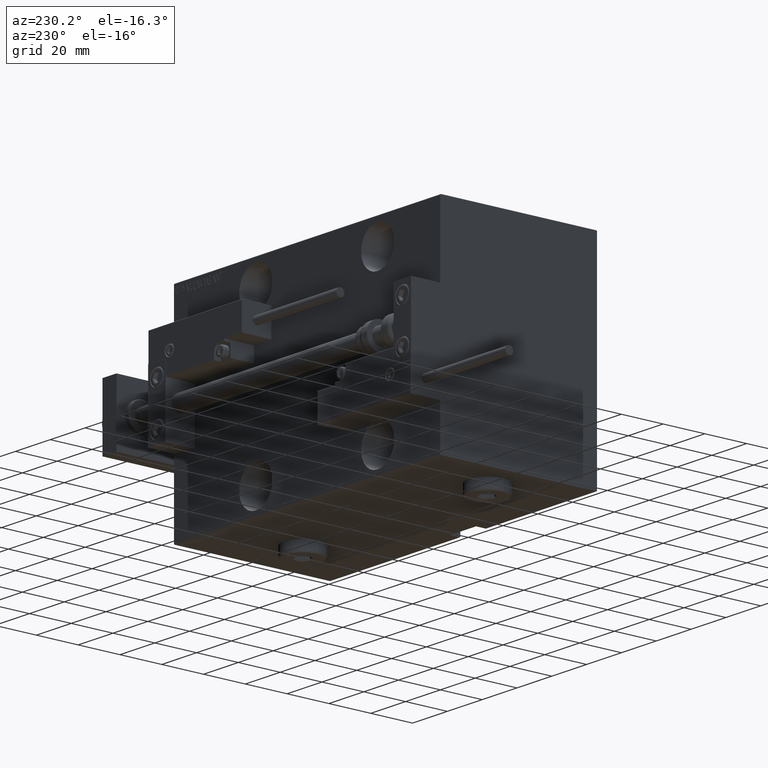
[diagram: clean part render]
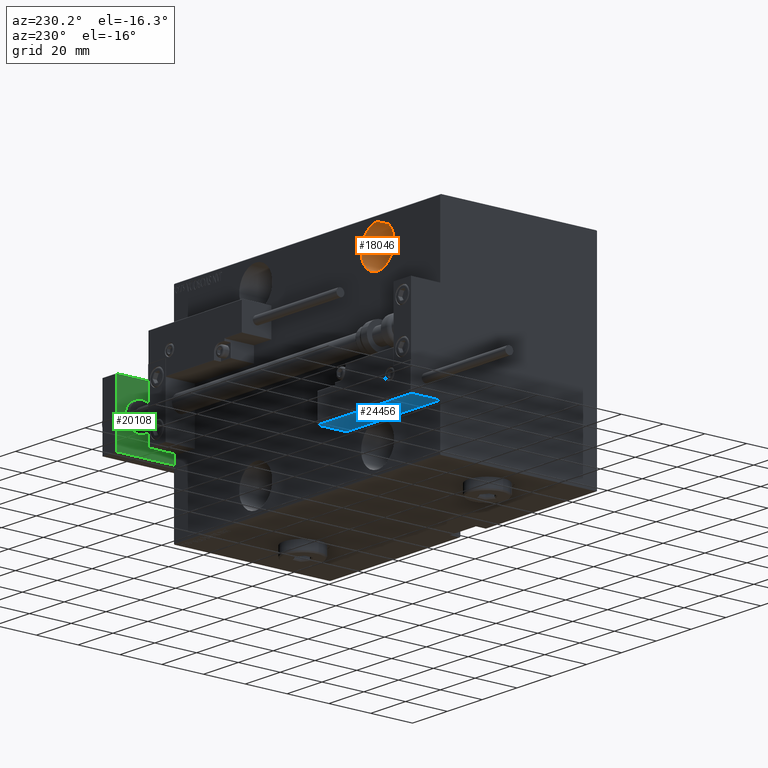
[diagram: same view with three faces highlighted in distinct colors, each labeled with its STEP entity id]
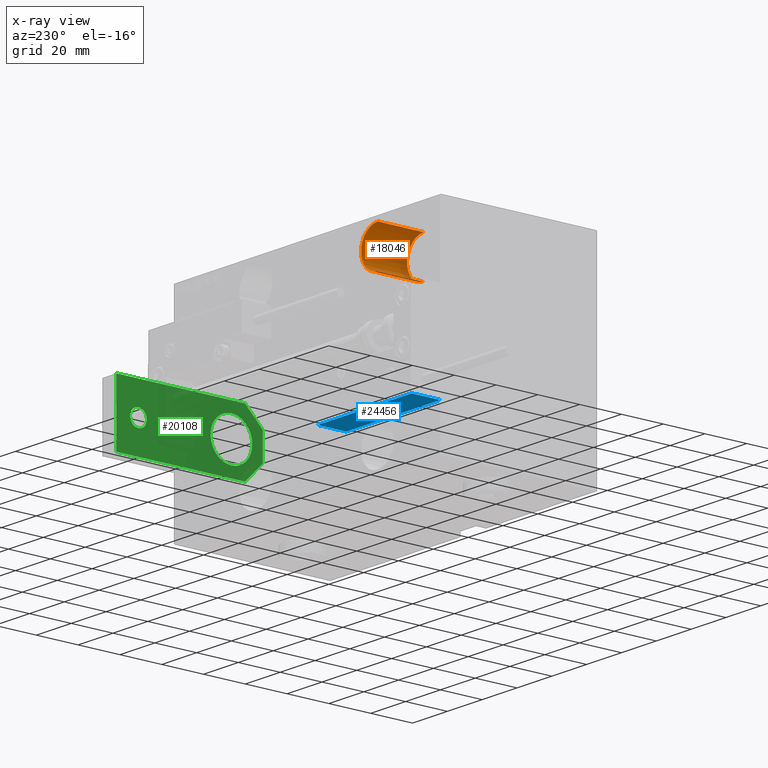
[diagram: x-ray of the same camera — body ghosted, the three highlighted faces saturated]
A machine part, auxiliary view with three faces highlighted in distinct colors.
The next image is the same camera in x-ray (body ghosted, the three faces saturated) — at least one of them is partly hidden behind the body in this view.
Their STEP definitions:

[orange] entity #18046 — the highlighted cylindrical surface (edge-blend (fillet) strip) has radius 9.5 mm, axis along (0, 1, -0).
#703 = EDGE_CURVE ( 'NONE', #44399, #51007, #41906, .T. ) ;
#1337 = DIRECTION ( 'NONE',  ( -0.000000000000000000, -1.000000000000000000, -0.000000000000000000 ) ) ;
#4567 = DIRECTION ( 'NONE',  ( 0.000000000000000000, 0.000000000000000000, -1.000000000000000000 ) ) ;
#6134 = ORIENTED_EDGE ( 'NONE', *, *, #703, .T. ) ;
#6302 = DIRECTION ( 'NONE',  ( 0.000000000000000000, 0.000000000000000000, -1.000000000000000000 ) ) ;
#6989 = CARTESIAN_POINT ( 'NONE',  ( 117.0000000000000142, -15.50000000000000000, 28.49999999999997513 ) ) ;
#7528 = VECTOR ( 'NONE', #24586, 1000.000000000000000 ) ;
#9220 = CIRCLE ( 'NONE', #29903, 9.500000000000008882 ) ;
#11853 = CARTESIAN_POINT ( 'NONE',  ( 117.0000000000000142, -15.50000000000000000, 37.99999999999998579 ) ) ;
#12366 = CYLINDRICAL_SURFACE ( 'NONE', #34067, 9.500000000000008882 ) ;
#14119 = CARTESIAN_POINT ( 'NONE',  ( 117.0000000000000142, -15.50000000000000000, 47.49999999999999289 ) ) ;
#17984 = EDGE_CURVE ( 'NONE', #40352, #32303, #9220, .T. ) ;
#18046 = ADVANCED_FACE ( 'NONE', ( #32335 ), #12366, .F. ) ;
#20144 = DIRECTION ( 'NONE',  ( 0.000000000000000000, -1.000000000000000000, 0.000000000000000000 ) ) ;
#21302 = CARTESIAN_POINT ( 'NONE',  ( 117.0000000000000142, -15.50000000000000000, 28.49999999999997513 ) ) ;
#23742 = CARTESIAN_POINT ( 'NONE',  ( 117.0000000000000142, -37.50000000000000000, 28.49999999999997513 ) ) ;
#24586 = DIRECTION ( 'NONE',  ( -0.000000000000000000, -1.000000000000000000, -0.000000000000000000 ) ) ;
#25084 = CARTESIAN_POINT ( 'NONE',  ( 117.0000000000000142, -15.50000000000000000, 47.49999999999999289 ) ) ;
#27135 = ORIENTED_EDGE ( 'NONE', *, *, #17984, .F. ) ;
#27275 = EDGE_LOOP ( 'NONE', ( #27135, #42801, #6134, #29849 ) ) ;
#27659 = DIRECTION ( 'NONE',  ( -0.000000000000000000, -1.000000000000000000, -0.000000000000000000 ) ) ;
#29849 = ORIENTED_EDGE ( 'NONE', *, *, #35231, .F. ) ;
#29903 = AXIS2_PLACEMENT_3D ( 'NONE', #11853, #20144, #4567 ) ;
#32303 = VERTEX_POINT ( 'NONE', #6989 ) ;
#32335 = FACE_OUTER_BOUND ( 'NONE', #27275, .T. ) ;
#32737 = LINE ( 'NONE', #21302, #37910 ) ;
#33295 = DIRECTION ( 'NONE',  ( 0.000000000000000000, -1.000000000000000000, 0.000000000000000000 ) ) ;
#34067 = AXIS2_PLACEMENT_3D ( 'NONE', #48215, #27659, #43538 ) ;
#35231 = EDGE_CURVE ( 'NONE', #32303, #51007, #32737, .T. ) ;
#36103 = AXIS2_PLACEMENT_3D ( 'NONE', #49426, #33295, #6302 ) ;
#37280 = LINE ( 'NONE', #25084, #7528 ) ;
#37910 = VECTOR ( 'NONE', #1337, 1000.000000000000000 ) ;
#38681 = CARTESIAN_POINT ( 'NONE',  ( 117.0000000000000142, -37.50000000000000000, 47.49999999999999289 ) ) ;
#40352 = VERTEX_POINT ( 'NONE', #14119 ) ;
#41906 = CIRCLE ( 'NONE', #36103, 9.500000000000008882 ) ;
#42801 = ORIENTED_EDGE ( 'NONE', *, *, #46486, .T. ) ;
#43538 = DIRECTION ( 'NONE',  ( 0.000000000000000000, 0.000000000000000000, -1.000000000000000000 ) ) ;
#44399 = VERTEX_POINT ( 'NONE', #38681 ) ;
#46486 = EDGE_CURVE ( 'NONE', #40352, #44399, #37280, .T. ) ;
#48215 = CARTESIAN_POINT ( 'NONE',  ( 117.0000000000000142, -15.50000000000000000, 37.99999999999998579 ) ) ;
#49426 = CARTESIAN_POINT ( 'NONE',  ( 117.0000000000000142, -37.50000000000000000, 37.99999999999998579 ) ) ;
#51007 = VERTEX_POINT ( 'NONE', #23742 ) ;

[blue] entity #24456 — the highlighted planar face has unit normal (-0, -0, 1).
#1993 = CARTESIAN_POINT ( 'NONE',  ( -26.99999999999993605, 20.00000000000002132, 0.000000000000000000 ) ) ;
#2874 = DIRECTION ( 'NONE',  ( -6.424901762877063495E-17, -1.000000000000000000, 0.000000000000000000 ) ) ;
#3693 = LINE ( 'NONE', #26794, #49859 ) ;
#5208 = EDGE_CURVE ( 'NONE', #27869, #35952, #18635, .T. ) ;
#10988 = VERTEX_POINT ( 'NONE', #1993 ) ;
#11690 = CARTESIAN_POINT ( 'NONE',  ( 27.00000000000006395, 20.00000000000001776, 14.00000000000000000 ) ) ;
#12046 = ORIENTED_EDGE ( 'NONE', *, *, #5208, .T. ) ;
#13788 = EDGE_CURVE ( 'NONE', #35952, #17955, #3693, .T. ) ;
#15648 = DIRECTION ( 'NONE',  ( -0.000000000000000000, -0.000000000000000000, -1.000000000000000000 ) ) ;
#16798 = CARTESIAN_POINT ( 'NONE',  ( 27.00000000000006395, 20.00000000000001776, 13.70000000000000107 ) ) ;
#17461 = LINE ( 'NONE', #48406, #48952 ) ;
#17955 = VERTEX_POINT ( 'NONE', #35721 ) ;
#18635 = LINE ( 'NONE', #47210, #43672 ) ;
#19173 = DIRECTION ( 'NONE',  ( -1.000000000000000000, 6.424901762877062263E-17, 0.000000000000000000 ) ) ;
#21197 = EDGE_CURVE ( 'NONE', #17955, #10988, #35531, .T. ) ;
#22601 = PLANE ( 'NONE',  #24369 ) ;
#23302 = DIRECTION ( 'NONE',  ( 1.000000000000000000, -6.424901762877063495E-17, -0.000000000000000000 ) ) ;
#24369 = AXIS2_PLACEMENT_3D ( 'NONE', #11690, #2874, #35049 ) ;
#24456 = ADVANCED_FACE ( 'NONE', ( #46253 ), #22601, .F. ) ;
#25064 = VECTOR ( 'NONE', #19173, 1000.000000000000000 ) ;
#26794 = CARTESIAN_POINT ( 'NONE',  ( 27.00000000000006395, 20.00000000000001776, 14.00000000000000000 ) ) ;
#27726 = CARTESIAN_POINT ( 'NONE',  ( 27.00000000000006395, 20.00000000000001776, 0.000000000000000000 ) ) ;
#27869 = VERTEX_POINT ( 'NONE', #36594 ) ;
#32526 = DIRECTION ( 'NONE',  ( -0.000000000000000000, -0.000000000000000000, -1.000000000000000000 ) ) ;
#35049 = DIRECTION ( 'NONE',  ( 1.000000000000000000, -6.424901762877063495E-17, 0.000000000000000000 ) ) ;
#35531 = LINE ( 'NONE', #27726, #25064 ) ;
#35721 = CARTESIAN_POINT ( 'NONE',  ( 27.00000000000006395, 20.00000000000001776, 0.000000000000000000 ) ) ;
#35952 = VERTEX_POINT ( 'NONE', #16798 ) ;
#36594 = CARTESIAN_POINT ( 'NONE',  ( -26.99999999999993605, 20.00000000000002132, 13.70000000000000107 ) ) ;
#41881 = EDGE_LOOP ( 'NONE', ( #43148, #12046, #48536, #45362 ) ) ;
#43148 = ORIENTED_EDGE ( 'NONE', *, *, #43155, .F. ) ;
#43155 = EDGE_CURVE ( 'NONE', #27869, #10988, #17461, .T. ) ;
#43672 = VECTOR ( 'NONE', #23302, 1000.000000000000000 ) ;
#45362 = ORIENTED_EDGE ( 'NONE', *, *, #21197, .T. ) ;
#46253 = FACE_OUTER_BOUND ( 'NONE', #41881, .T. ) ;
#47210 = CARTESIAN_POINT ( 'NONE',  ( 27.00000000000006395, 20.00000000000001776, 13.70000000000000107 ) ) ;
#48406 = CARTESIAN_POINT ( 'NONE',  ( -26.99999999999993605, 20.00000000000002132, 14.00000000000000000 ) ) ;
#48536 = ORIENTED_EDGE ( 'NONE', *, *, #13788, .T. ) ;
#48952 = VECTOR ( 'NONE', #32526, 1000.000000000000000 ) ;
#49859 = VECTOR ( 'NONE', #15648, 1000.000000000000000 ) ;

[green] entity #20108 — the highlighted planar face has unit normal (1, 0, -0).
#28 = EDGE_CURVE ( 'NONE', #47369, #10527, #17024, .T. ) ;
#806 = PLANE ( 'NONE',  #24235 ) ;
#1155 = DIRECTION ( 'NONE',  ( 1.000000000000000000, 0.000000000000000000, 0.000000000000000000 ) ) ;
#1313 = DIRECTION ( 'NONE',  ( -0.000000000000000000, 0.000000000000000000, 1.000000000000000000 ) ) ;
#1832 = ORIENTED_EDGE ( 'NONE', *, *, #36284, .T. ) ;
#3020 = CARTESIAN_POINT ( 'NONE',  ( 15.00000000000000000, 70.00000000000000000, 0.000000000000000000 ) ) ;
#5032 = CARTESIAN_POINT ( 'NONE',  ( 15.00000000000000000, 70.00000000000000000, 0.000000000000000000 ) ) ;
#5105 = EDGE_CURVE ( 'NONE', #36595, #35028, #9395, .T. ) ;
#5441 = ORIENTED_EDGE ( 'NONE', *, *, #28, .T. ) ;
#6258 = CARTESIAN_POINT ( 'NONE',  ( 15.00000000000000355, 8.500000000000007105, 0.000000000000000000 ) ) ;
#6573 = DIRECTION ( 'NONE',  ( 1.000000000000000000, 0.000000000000000000, 0.000000000000000000 ) ) ;
#6640 = EDGE_LOOP ( 'NONE', ( #21428, #17065 ) ) ;
#8738 = CIRCLE ( 'NONE', #44397, 10.00000000000000178 ) ;
#9395 = LINE ( 'NONE', #26178, #26228 ) ;
#10527 = VERTEX_POINT ( 'NONE', #21955 ) ;
#10812 = DIRECTION ( 'NONE',  ( -0.7071067811865483499, -0.7071067811865465735, -0.000000000000000000 ) ) ;
#11378 = VERTEX_POINT ( 'NONE', #11775 ) ;
#11421 = EDGE_CURVE ( 'NONE', #32948, #36559, #48933, .T. ) ;
#11775 = CARTESIAN_POINT ( 'NONE',  ( -6.499999999999993783, 0.000000000000000000, 0.000000000000000000 ) ) ;
#12264 = CARTESIAN_POINT ( 'NONE',  ( 10.00000000000000178, 15.00000000000001243, 0.000000000000000000 ) ) ;
#13036 = DIRECTION ( 'NONE',  ( -4.956352788505162775E-17, 1.000000000000000000, 0.000000000000000000 ) ) ;
#13648 = EDGE_LOOP ( 'NONE', ( #5441, #1832 ) ) ;
#13919 = VERTEX_POINT ( 'NONE', #34032 ) ;
#15003 = ORIENTED_EDGE ( 'NONE', *, *, #29691, .F. ) ;
#15924 = DIRECTION ( 'NONE',  ( 1.000000000000000000, 0.000000000000000000, 0.000000000000000000 ) ) ;
#17024 = CIRCLE ( 'NONE', #48552, 4.000000000000000888 ) ;
#17065 = ORIENTED_EDGE ( 'NONE', *, *, #27346, .T. ) ;
#17240 = ORIENTED_EDGE ( 'NONE', *, *, #31699, .T. ) ;
#18025 = LINE ( 'NONE', #29955, #23615 ) ;
#19174 = DIRECTION ( 'NONE',  ( 1.000000000000000000, 0.000000000000000000, 0.000000000000000000 ) ) ;
#19530 = VECTOR ( 'NONE', #10812, 1000.000000000000114 ) ;
#19843 = CARTESIAN_POINT ( 'NONE',  ( -6.499999999999993783, 0.000000000000000000, 0.000000000000000000 ) ) ;
#20108 = ADVANCED_FACE ( 'NONE', ( #40792, #37127, #40534 ), #806, .F. ) ;
#20865 = CARTESIAN_POINT ( 'NONE',  ( -1.432611055310774642E-16, 59.50000000000001421, 0.000000000000000000 ) ) ;
#21428 = ORIENTED_EDGE ( 'NONE', *, *, #11421, .T. ) ;
#21432 = VERTEX_POINT ( 'NONE', #37585 ) ;
#21955 = CARTESIAN_POINT ( 'NONE',  ( 4.000000000000000888, 59.50000000000001421, 0.000000000000000000 ) ) ;
#23075 = DIRECTION ( 'NONE',  ( 0.000000000000000000, 0.000000000000000000, 1.000000000000000000 ) ) ;
#23269 = EDGE_CURVE ( 'NONE', #11378, #21432, #40885, .T. ) ;
#23615 = VECTOR ( 'NONE', #42432, 1000.000000000000000 ) ;
#23657 = ORIENTED_EDGE ( 'NONE', *, *, #32634, .F. ) ;
#23811 = AXIS2_PLACEMENT_3D ( 'NONE', #20865, #36710, #1155 ) ;
#24142 = DIRECTION ( 'NONE',  ( 0.000000000000000000, 0.000000000000000000, 1.000000000000000000 ) ) ;
#24235 = AXIS2_PLACEMENT_3D ( 'NONE', #36611, #1313, #48335 ) ;
#24978 = VERTEX_POINT ( 'NONE', #28999 ) ;
#25784 = LINE ( 'NONE', #41648, #40683 ) ;
#26178 = CARTESIAN_POINT ( 'NONE',  ( 15.00000000000000355, 0.000000000000000000, 0.000000000000000000 ) ) ;
#26228 = VECTOR ( 'NONE', #13036, 1000.000000000000000 ) ;
#26331 = CARTESIAN_POINT ( 'NONE',  ( -10.00000000000000178, 15.00000000000001066, 0.000000000000000000 ) ) ;
#27346 = EDGE_CURVE ( 'NONE', #36559, #32948, #8738, .T. ) ;
#27485 = CARTESIAN_POINT ( 'NONE',  ( -9.629649721936179265E-32, 15.00000000000001066, 0.000000000000000000 ) ) ;
#28999 = CARTESIAN_POINT ( 'NONE',  ( -14.99999999999999822, 70.00000000000000000, 0.000000000000000000 ) ) ;
#29691 = EDGE_CURVE ( 'NONE', #24978, #21432, #18025, .T. ) ;
#29955 = CARTESIAN_POINT ( 'NONE',  ( -14.99999999999999822, 70.00000000000000000, 0.000000000000000000 ) ) ;
#31476 = AXIS2_PLACEMENT_3D ( 'NONE', #44233, #31487, #15924 ) ;
#31487 = DIRECTION ( 'NONE',  ( 0.000000000000000000, 0.000000000000000000, 1.000000000000000000 ) ) ;
#31699 = EDGE_CURVE ( 'NONE', #36595, #13919, #50540, .T. ) ;
#32634 = EDGE_CURVE ( 'NONE', #35028, #24978, #46650, .T. ) ;
#32948 = VERTEX_POINT ( 'NONE', #26331 ) ;
#33309 = ORIENTED_EDGE ( 'NONE', *, *, #23269, .T. ) ;
#34032 = CARTESIAN_POINT ( 'NONE',  ( 6.499999999999974243, 0.000000000000000000, 0.000000000000000000 ) ) ;
#35028 = VERTEX_POINT ( 'NONE', #5032 ) ;
#35676 = DIRECTION ( 'NONE',  ( -0.7071067811865467956, 0.7071067811865483499, -0.000000000000000000 ) ) ;
#36284 = EDGE_CURVE ( 'NONE', #10527, #47369, #46212, .T. ) ;
#36559 = VERTEX_POINT ( 'NONE', #12264 ) ;
#36595 = VERTEX_POINT ( 'NONE', #6258 ) ;
#36611 = CARTESIAN_POINT ( 'NONE',  ( 0.000000000000000000, 0.000000000000000000, 0.000000000000000000 ) ) ;
#36710 = DIRECTION ( 'NONE',  ( 0.000000000000000000, 0.000000000000000000, 1.000000000000000000 ) ) ;
#37127 = FACE_BOUND ( 'NONE', #13648, .T. ) ;
#37585 = CARTESIAN_POINT ( 'NONE',  ( -15.00000000000000355, 8.500000000000028422, 0.000000000000000000 ) ) ;
#40534 = FACE_BOUND ( 'NONE', #6640, .T. ) ;
#40683 = VECTOR ( 'NONE', #6573, 1000.000000000000000 ) ;
#40792 = FACE_OUTER_BOUND ( 'NONE', #42612, .T. ) ;
#40885 = LINE ( 'NONE', #19843, #47548 ) ;
#41648 = CARTESIAN_POINT ( 'NONE',  ( -15.00000000000000355, 0.000000000000000000, 0.000000000000000000 ) ) ;
#41996 = DIRECTION ( 'NONE',  ( -1.000000000000000000, 0.000000000000000000, 0.000000000000000000 ) ) ;
#42432 = DIRECTION ( 'NONE',  ( -7.434529182757744162E-17, -1.000000000000000000, 0.000000000000000000 ) ) ;
#42612 = EDGE_LOOP ( 'NONE', ( #43582, #33309, #15003, #23657, #42747, #17240 ) ) ;
#42747 = ORIENTED_EDGE ( 'NONE', *, *, #5105, .F. ) ;
#43361 = DIRECTION ( 'NONE',  ( 1.000000000000000000, 0.000000000000000000, 0.000000000000000000 ) ) ;
#43582 = ORIENTED_EDGE ( 'NONE', *, *, #46841, .F. ) ;
#44233 = CARTESIAN_POINT ( 'NONE',  ( -9.629649721936179265E-32, 15.00000000000001066, 0.000000000000000000 ) ) ;
#44397 = AXIS2_PLACEMENT_3D ( 'NONE', #27485, #24142, #43361 ) ;
#44559 = VECTOR ( 'NONE', #41996, 1000.000000000000000 ) ;
#45868 = CARTESIAN_POINT ( 'NONE',  ( -4.000000000000000888, 59.50000000000001421, 0.000000000000000000 ) ) ;
#46212 = CIRCLE ( 'NONE', #23811, 4.000000000000000888 ) ;
#46650 = LINE ( 'NONE', #3020, #44559 ) ;
#46841 = EDGE_CURVE ( 'NONE', #11378, #13919, #25784, .T. ) ;
#47369 = VERTEX_POINT ( 'NONE', #45868 ) ;
#47548 = VECTOR ( 'NONE', #35676, 1000.000000000000000 ) ;
#48017 = CARTESIAN_POINT ( 'NONE',  ( -1.432611055310774642E-16, 59.50000000000001421, 0.000000000000000000 ) ) ;
#48335 = DIRECTION ( 'NONE',  ( 1.000000000000000000, 0.000000000000000000, 0.000000000000000000 ) ) ;
#48552 = AXIS2_PLACEMENT_3D ( 'NONE', #48017, #23075, #19174 ) ;
#48933 = CIRCLE ( 'NONE', #31476, 10.00000000000000178 ) ;
#49784 = CARTESIAN_POINT ( 'NONE',  ( 15.00000000000000355, 8.500000000000007105, 0.000000000000000000 ) ) ;
#50540 = LINE ( 'NONE', #49784, #19530 ) ;